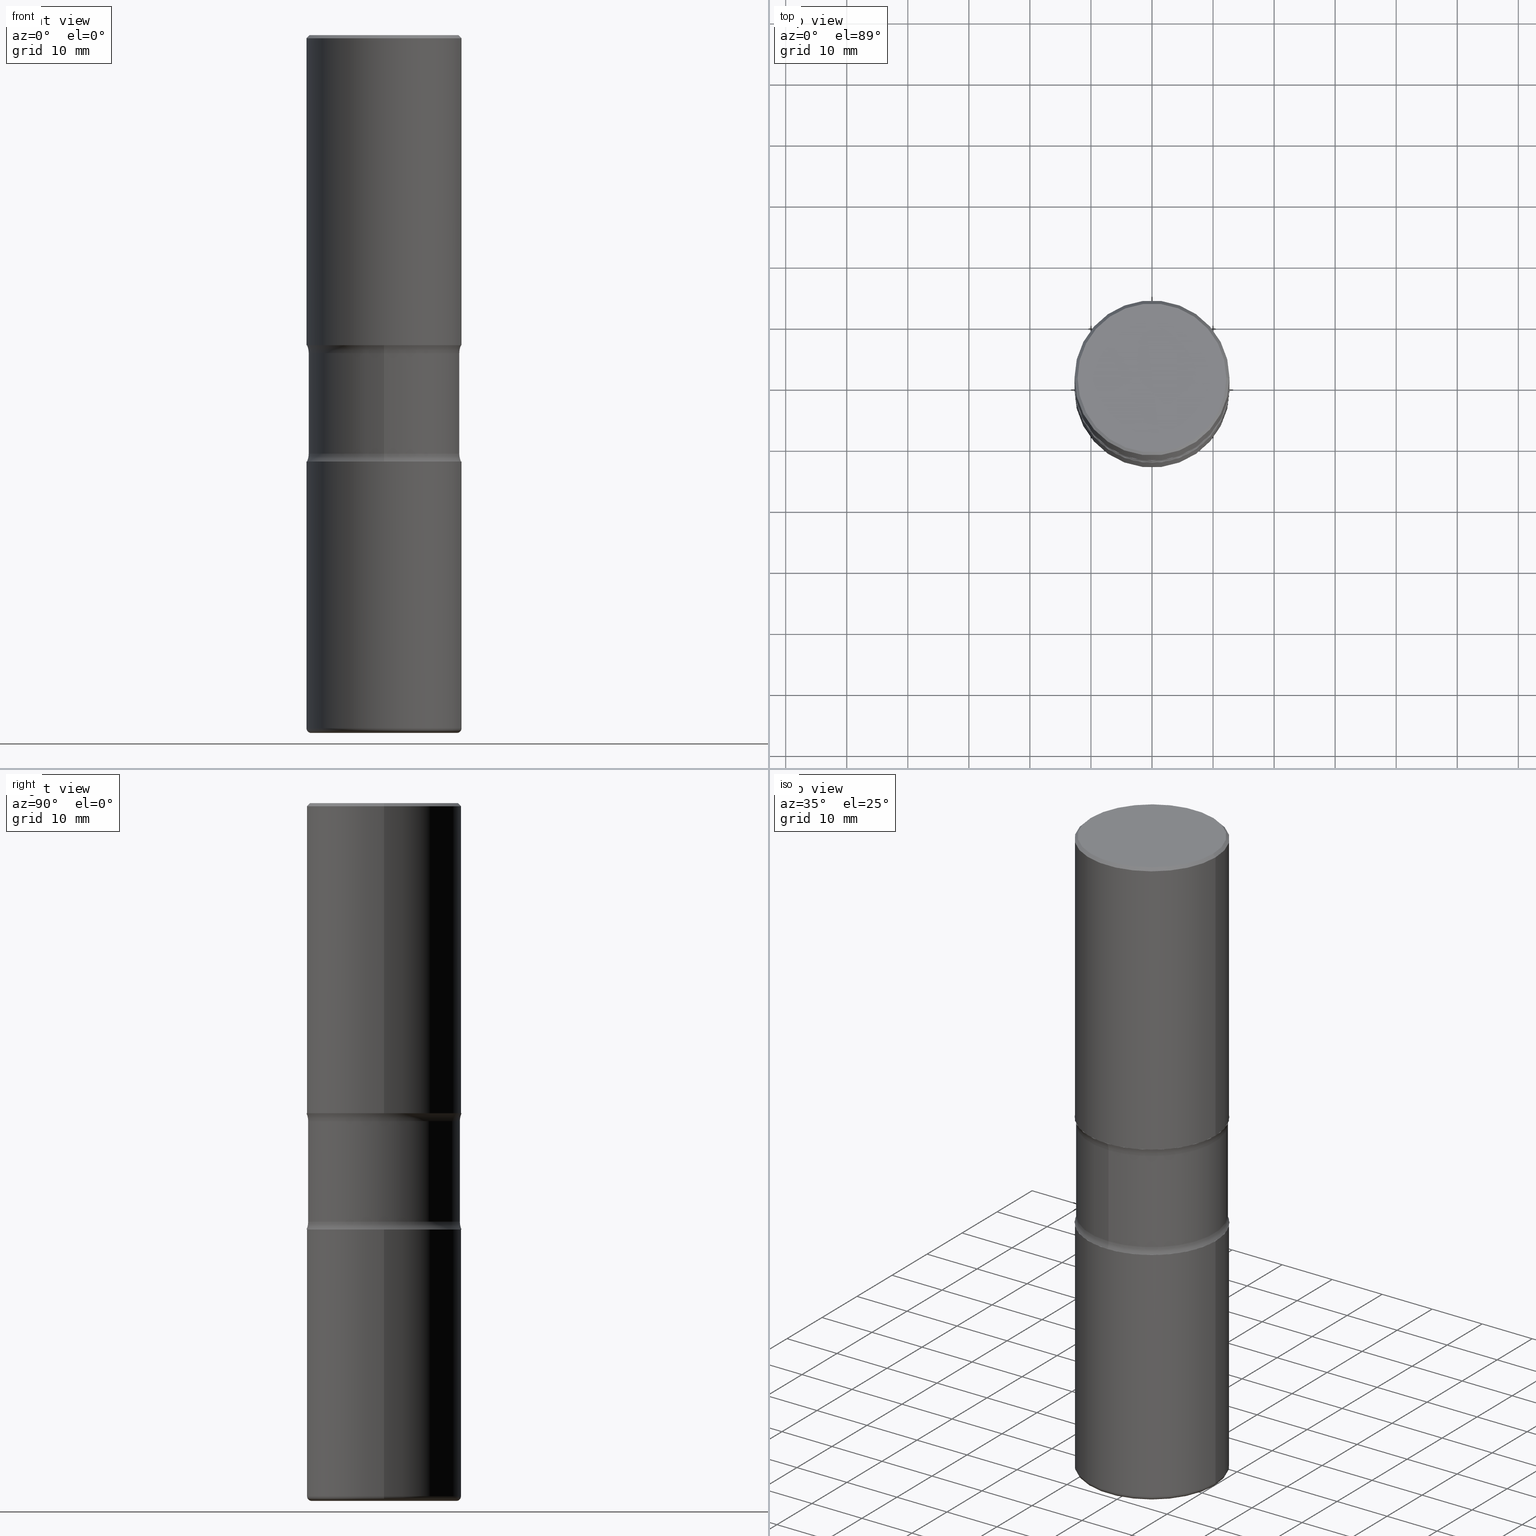
[diagram: canonical four-view strip — front | top / right | iso, engineering-drawing reading convention]
A machine part, canonical four-view strip (front | top / right | iso — engineering-drawing reading convention). The complete STEP part file that produces these views, byte-faithful:
ISO-10303-21;
HEADER;
FILE_DESCRIPTION (( 'STEP AP203' ),
    '1' );
FILE_NAME ('34008.STEP',
    '2024-03-01T22:53:43',
    ( '' ),
    ( '' ),
    'SwSTEP 2.0',
    'SolidWorks 2023',
    '' );
FILE_SCHEMA (( 'CONFIG_CONTROL_DESIGN' ));
ENDSEC;

DATA;
#1 = EDGE_LOOP ( 'NONE', ( #41, #558, #518, #480 ) ) ;
#2 = CARTESIAN_POINT ( 'NONE',  ( 1.100460962783311469E-28, -1.571166602479415690E-14, -4.500000000000000000 ) ) ;
#3 = AXIS2_PLACEMENT_3D ( 'NONE', #315, #403, #489 ) ;
#4 = CIRCLE ( 'NONE', #181, 0.1250000000000000278 ) ;
#5 = EDGE_LOOP ( 'NONE', ( #207, #117 ) ) ;
#6 = ADVANCED_FACE ( 'NONE', ( #179 ), #525, .T. ) ;
#7 = CARTESIAN_POINT ( 'NONE',  ( 1.093124556364756229E-28, -1.560692158462886353E-14, -4.470000000000000639 ) ) ;
#8 = FACE_OUTER_BOUND ( 'NONE', #5, .T. ) ;
#9 = EDGE_CURVE ( 'NONE', #259, #341, #82, .T. ) ;
#10 = CARTESIAN_POINT ( 'NONE',  ( -4.212345770631669993E-15, -0.6140000000000072067, -2.051273774973176423 ) ) ;
#11 = VERTEX_POINT ( 'NONE', #439 ) ;
#12 = CARTESIAN_POINT ( 'NONE',  ( 4.287539084099434435E-15, 0.6139999999999906644, -2.698726225026825354 ) ) ;
#13 = APPROVAL_PERSON_ORGANIZATION ( #24, #252, #162 ) ;
#14 = CARTESIAN_POINT ( 'NONE',  ( 0.5000000000000004441, -3.491481338843136511E-15, 2.438088387897969858E-29 ) ) ;
#15 = AXIS2_PLACEMENT_3D ( 'NONE', #188, #116, #76 ) ;
#16 = LOCAL_TIME ( 17, 53, 43.00000000000000000, #249 ) ;
#17 = CARTESIAN_POINT ( 'NONE',  ( 6.725039217009125641E-29, -9.601573681818653015E-15, -2.750000000000000444 ) ) ;
#18 = VERTEX_POINT ( 'NONE', #442 ) ;
#19 = DIRECTION ( 'NONE',  ( -2.445468806185136597E-29, 3.491481338843145583E-15, 1.000000000000000000 ) ) ;
#20 = DIRECTION ( 'NONE',  ( 1.000000000000000000, -6.982962677686266711E-15, 0.000000000000000000 ) ) ;
#21 = CARTESIAN_POINT ( 'NONE',  ( 1.093124556364756229E-28, -1.560692158462886353E-14, -4.470000000000000639 ) ) ;
#22 = CARTESIAN_POINT ( 'NONE',  ( 4.890937612370274875E-29, -6.982962677686292743E-15, -2.000000000000000444 ) ) ;
#23 = CIRCLE ( 'NONE', #201, 0.5000000000000002220 ) ;
#24 = PERSON_AND_ORGANIZATION ( #520, #257 ) ;
#25 = ADVANCED_FACE ( 'NONE', ( #142 ), #221, .F. ) ;
#26 = DIRECTION ( 'NONE',  ( -1.000000000000000000, 6.982962677686265922E-15, -4.876176775795935793E-29 ) ) ;
#27 = EDGE_LOOP ( 'NONE', ( #175, #478, #476, #485 ) ) ;
#28 = APPROVAL_STATUS ( 'not_yet_approved' ) ;
#29 = ADVANCED_FACE ( 'NONE', ( #8 ), #177, .F. ) ;
#30 = CARTESIAN_POINT ( 'NONE',  ( 6.725039217009125641E-29, -9.601573681818653015E-15, -2.750000000000000444 ) ) ;
#31 = PERSON_AND_ORGANIZATION ( #520, #257 ) ;
#32 = CARTESIAN_POINT ( 'NONE',  ( 0.4800000000000001488, -3.396558832296483282E-15, 1.280553747032483033E-17 ) ) ;
#33 = AXIS2_PLACEMENT_3D ( 'NONE', #321, #408, #443 ) ;
#34 = PERSON_AND_ORGANIZATION ( #520, #257 ) ;
#35 = AXIS2_PLACEMENT_3D ( 'NONE', #289, #477, #262 ) ;
#36 = CARTESIAN_POINT ( 'NONE',  ( 5.033067857215771356E-29, -7.138008856206666499E-15, -2.051273774973178643 ) ) ;
#37 = EDGE_CURVE ( 'NONE', #11, #259, #267, .T. ) ;
#38 = ORIENTED_EDGE ( 'NONE', *, *, #426, .F. ) ;
#39 = APPROVAL_DATE_TIME ( #282, #48 ) ;
#40 = MANIFOLD_SOLID_BREP ( 'Body-Move/Copy2[2]', #300 ) ;
#41 = ORIENTED_EDGE ( 'NONE', *, *, #286, .T. ) ;
#42 = ORIENTED_EDGE ( 'NONE', *, *, #426, .T. ) ;
#43 = AXIS2_PLACEMENT_3D ( 'NONE', #343, #135, #519 ) ;
#44 = AXIS2_PLACEMENT_3D ( 'NONE', #69, #269, #366 ) ;
#45 = VERTEX_POINT ( 'NONE', #482 ) ;
#46 = CYLINDRICAL_SURFACE ( 'NONE', #256, 0.4890000000000000457 ) ;
#47 = ORIENTED_EDGE ( 'NONE', *, *, #270, .F. ) ;
#48 = APPROVAL ( #122, 'UNSPECIFIED' ) ;
#49 = DIRECTION ( 'NONE',  ( -1.000000000000000000, 6.982962677686265922E-15, -4.876176775795935793E-29 ) ) ;
#50 = EDGE_CURVE ( 'NONE', #18, #84, #393, .T. ) ;
#51 = VERTEX_POINT ( 'NONE', #183 ) ;
#52 = CARTESIAN_POINT ( 'NONE',  ( -0.5000000000000003331, 3.552713678800503296E-15, -2.459467545127454572E-29 ) ) ;
#53 = LOCAL_TIME ( 17, 53, 43.00000000000000000, #324 ) ;
#54 = CIRCLE ( 'NONE', #230, 0.1249999999999999584 ) ;
#55 = VERTEX_POINT ( 'NONE', #398 ) ;
#56 = CARTESIAN_POINT ( 'NONE',  ( 3.351822085289408731E-15, 0.4800000000000001488, -1.669508273909559839E-15 ) ) ;
#57 = DIRECTION ( 'NONE',  ( 1.000000000000000000, -6.982962677686268288E-15, 0.000000000000000000 ) ) ;
#58 = LINE ( 'NONE', #402, #390 ) ;
#59 = CARTESIAN_POINT ( 'NONE',  ( 4.890937612370274875E-29, -6.982962677686292743E-15, -2.000000000000000444 ) ) ;
#60 = CYLINDRICAL_SURFACE ( 'NONE', #290, 0.4890000000000000457 ) ;
#61 = EDGE_CURVE ( 'NONE', #84, #304, #311, .T. ) ;
#62 = AXIS2_PLACEMENT_3D ( 'NONE', #445, #101, #108 ) ;
#63 = ORIENTED_EDGE ( 'NONE', *, *, #303, .T. ) ;
#64 = CLOSED_SHELL ( 'NONE', ( #362, #414, #170, #338, #6, #29 ) ) ;
#65 = VECTOR ( 'NONE', #68, 39.37007874015748143 ) ;
#66 = DIRECTION ( 'NONE',  ( 6.982962677686265133E-15, 1.000000000000000000, -3.278217592397113101E-15 ) ) ;
#67 = CARTESIAN_POINT ( 'NONE',  ( 5.016326029642537389E-29, -7.161984106177186879E-15, -2.051273774973178643 ) ) ;
#68 = DIRECTION ( 'NONE',  ( 2.421508309250029379E-29, -3.525794134201012972E-15, -1.000000000000000000 ) ) ;
#69 = CARTESIAN_POINT ( 'NONE',  ( 6.600879344864962376E-29, -9.420792906779880886E-15, -2.698726225026823133 ) ) ;
#70 = DIRECTION ( 'NONE',  ( -2.445468806185136597E-29, 3.491481338843145583E-15, 1.000000000000000000 ) ) ;
#71 = ORIENTED_EDGE ( 'NONE', *, *, #392, .T. ) ;
#72 = AXIS2_PLACEMENT_3D ( 'NONE', #106, #276, #365 ) ;
#73 = CALENDAR_DATE ( 2024, 1, 3 ) ;
#74 = DIRECTION ( 'NONE',  ( 1.000000000000000000, -6.982962677686267499E-15, 0.000000000000000000 ) ) ;
#75 = APPROVAL_STATUS ( 'not_yet_approved' ) ;
#76 = DIRECTION ( 'NONE',  ( 1.000000000000000000, -6.982962677686266711E-15, 0.000000000000000000 ) ) ;
#77 = ORIENTED_EDGE ( 'NONE', *, *, #529, .T. ) ;
#78 = PERSON_AND_ORGANIZATION ( #520, #257 ) ;
#79 = CARTESIAN_POINT ( 'NONE',  ( 1.093124556364756229E-28, -1.560692158462886353E-14, -4.470000000000000639 ) ) ;
#80 = CC_DESIGN_PERSON_AND_ORGANIZATION_ASSIGNMENT ( #202, #337, ( #344 ) ) ;
#81 = APPROVAL_ROLE ( '' ) ;
#82 = CIRCLE ( 'NONE', #449, 0.5000000000000002220 ) ;
#83 = TOROIDAL_SURFACE ( 'NONE', #467, 0.6139999999999999902, 0.1250000000000000278 ) ;
#84 = VERTEX_POINT ( 'NONE', #144 ) ;
#85 = DATE_TIME_ROLE ( 'classification_date' ) ;
#86 = EDGE_LOOP ( 'NONE', ( #470, #100, #431, #339 ) ) ;
#87 = EDGE_LOOP ( 'NONE', ( #457, #241 ) ) ;
#88 = CIRCLE ( 'NONE', #62, 0.1250000000000000278 ) ;
#89 = DIRECTION ( 'NONE',  ( -2.445468806185136877E-29, 3.491481338843145188E-15, 1.000000000000000000 ) ) ;
#90 = ADVANCED_FACE ( 'NONE', ( #537 ), #83, .F. ) ;
#91 = AXIS2_PLACEMENT_3D ( 'NONE', #376, #109, #368 ) ;
#92 = ORIENTED_EDGE ( 'NONE', *, *, #288, .F. ) ;
#93 = CARTESIAN_POINT ( 'NONE',  ( 4.890937612370274875E-29, -6.982962677686292743E-15, -2.000000000000000444 ) ) ;
#94 = EDGE_CURVE ( 'NONE', #136, #348, #54, .T. ) ;
#95 = VERTEX_POINT ( 'NONE', #32 ) ;
#96 = FACE_OUTER_BOUND ( 'NONE', #437, .T. ) ;
#97 = ORIENTED_EDGE ( 'NONE', *, *, #270, .T. ) ;
#98 = DIRECTION ( 'NONE',  ( -2.445468806185136597E-29, 3.491481338843145583E-15, 1.000000000000000000 ) ) ;
#99 = AXIS2_PLACEMENT_3D ( 'NONE', #59, #396, #225 ) ;
#100 = ORIENTED_EDGE ( 'NONE', *, *, #94, .T. ) ;
#101 = DIRECTION ( 'NONE',  ( -1.000000000000000000, 6.982962677686265922E-15, -4.883557194083112340E-29 ) ) ;
#102 = VERTEX_POINT ( 'NONE', #196 ) ;
#103 = DIRECTION ( 'NONE',  ( -6.982962677686269077E-15, -1.000000000000000000, 0.000000000000000000 ) ) ;
#104 = ORIENTED_EDGE ( 'NONE', *, *, #9, .F. ) ;
#105 = LOCAL_TIME ( 17, 53, 43.00000000000000000, #552 ) ;
#106 = CARTESIAN_POINT ( 'NONE',  ( 4.890937612370298557E-31, -6.982962677686327354E-17, -0.02000000000000010103 ) ) ;
#107 = AXIS2_PLACEMENT_3D ( 'NONE', #350, #527, #361 ) ;
#108 = DIRECTION ( 'NONE',  ( -6.982962677686265133E-15, -1.000000000000000000, 0.000000000000000000 ) ) ;
#109 = DIRECTION ( 'NONE',  ( 2.421508309250029379E-29, -3.525794134201012578E-15, -1.000000000000000000 ) ) ;
#110 = DIRECTION ( 'NONE',  ( -2.445468806185136597E-29, 3.491481338843145583E-15, 1.000000000000000000 ) ) ;
#111 = PLANE ( 'NONE',  #329 ) ;
#112 = PERSON_AND_ORGANIZATION_ROLE ( 'creator' ) ;
#113 = ADVANCED_FACE ( 'NONE', ( #495 ), #421, .F. ) ;
#114 = DIRECTION ( 'NONE',  ( 6.982962677686265922E-15, 1.000000000000000000, -3.525794134201012578E-15 ) ) ;
#115 = AXIS2_PLACEMENT_3D ( 'NONE', #186, #535, #57 ) ;
#116 = DIRECTION ( 'NONE',  ( -2.445468806185136597E-29, 3.491481338843145583E-15, 1.000000000000000000 ) ) ;
#117 = ORIENTED_EDGE ( 'NONE', *, *, #515, .T. ) ;
#118 = CYLINDRICAL_SURFACE ( 'NONE', #43, 0.5000000000000004441 ) ;
#119 = PERSON_AND_ORGANIZATION_ROLE ( 'design_owner' ) ;
#120 = ADVANCED_FACE ( 'NONE', ( #155 ), #411, .T. ) ;
#121 = ORIENTED_EDGE ( 'NONE', *, *, #50, .F. ) ;
#122 = APPROVAL_STATUS ( 'not_yet_approved' ) ;
#123 = AXIS2_PLACEMENT_3D ( 'NONE', #79, #347, #524 ) ;
#124 = ORIENTED_EDGE ( 'NONE', *, *, #184, .T. ) ;
#125 = ORIENTED_EDGE ( 'NONE', *, *, #469, .T. ) ;
#126 = EDGE_CURVE ( 'NONE', #341, #259, #23, .T. ) ;
#127 = FACE_OUTER_BOUND ( 'NONE', #255, .T. ) ;
#128 = ORIENTED_EDGE ( 'NONE', *, *, #322, .F. ) ;
#129 = AXIS2_PLACEMENT_3D ( 'NONE', #369, #242, #379 ) ;
#130 = CARTESIAN_POINT ( 'NONE',  ( 6.725039217009125641E-29, -9.601573681818653015E-15, -2.750000000000000444 ) ) ;
#131 = CIRCLE ( 'NONE', #522, 0.4800000000000001488 ) ;
#132 = ORIENTED_EDGE ( 'NONE', *, *, #512, .T. ) ;
#133 = EDGE_CURVE ( 'NONE', #146, #434, #549, .T. ) ;
#134 = APPLICATION_CONTEXT ( 'configuration controlled 3d designs of mechanical parts and assemblies' ) ;
#135 = DIRECTION ( 'NONE',  ( -2.445468806185136597E-29, 3.491481338843145583E-15, 1.000000000000000000 ) ) ;
#136 = VERTEX_POINT ( 'NONE', #190 ) ;
#137 = FACE_OUTER_BOUND ( 'NONE', #342, .T. ) ;
#138 = ORIENTED_EDGE ( 'NONE', *, *, #557, .T. ) ;
#139 = CARTESIAN_POINT ( 'NONE',  ( -3.131554243005659264E-46, 4.471029511141341874E-32, 1.280553747030123384E-17 ) ) ;
#140 =( GEOMETRIC_REPRESENTATION_CONTEXT ( 3 ) GLOBAL_UNCERTAINTY_ASSIGNED_CONTEXT ( ( #511 ) ) GLOBAL_UNIT_ASSIGNED_CONTEXT ( ( #462, #542, #500 ) ) REPRESENTATION_CONTEXT ( 'NONE', 'WORKASPACE' ) );
#141 = AXIS2_PLACEMENT_3D ( 'NONE', #454, #193, #501 ) ;
#142 = FACE_OUTER_BOUND ( 'NONE', #87, .T. ) ;
#143 = CARTESIAN_POINT ( 'NONE',  ( 4.908907985071605288E-29, -6.957228081167892792E-15, -2.000000000000000444 ) ) ;
#144 = CARTESIAN_POINT ( 'NONE',  ( 0.5000000000000002220, -1.909840292347200004E-14, -4.470000000000000639 ) ) ;
#145 = ADVANCED_FACE ( 'NONE', ( #239 ), #173, .T. ) ;
#146 = VERTEX_POINT ( 'NONE', #234 ) ;
#147 = CARTESIAN_POINT ( 'NONE',  ( 6.725039217009125641E-29, -9.601573681818653015E-15, -2.750000000000000444 ) ) ;
#148 = DIRECTION ( 'NONE',  ( 6.860497997771532351E-15, 1.000000000000000000, 0.000000000000000000 ) ) ;
#149 = AXIS2_PLACEMENT_3D ( 'NONE', #416, #278, #26 ) ;
#150 = DIRECTION ( 'NONE',  ( 2.421508309250029379E-29, -3.525794134201012578E-15, -1.000000000000000000 ) ) ;
#151 = FACE_OUTER_BOUND ( 'NONE', #345, .T. ) ;
#152 = DATE_AND_TIME ( #197, #209 ) ;
#153 = CARTESIAN_POINT ( 'NONE',  ( 6.599650799736865930E-29, -9.422552253327759667E-15, -2.698726225026823133 ) ) ;
#154 = DATE_AND_TIME ( #374, #163 ) ;
#155 = FACE_OUTER_BOUND ( 'NONE', #516, .T. ) ;
#156 = CIRCLE ( 'NONE', #285, 0.4800000000000001488 ) ;
#157 = AXIS2_PLACEMENT_3D ( 'NONE', #331, #98, #176 ) ;
#158 = DIRECTION ( 'NONE',  ( 1.000000000000000000, -6.860497997771530774E-15, 4.840378669074095129E-29 ) ) ;
#159 = PERSON_AND_ORGANIZATION_ROLE ( 'design_supplier' ) ;
#160 = DIRECTION ( 'NONE',  ( 1.000000000000000000, -6.982962677686268288E-15, 0.000000000000000000 ) ) ;
#161 = EDGE_LOOP ( 'NONE', ( #427, #253, #213, #464 ) ) ;
#162 = APPROVAL_ROLE ( '' ) ;
#163 = LOCAL_TIME ( 17, 53, 43.00000000000000000, #466 ) ;
#164 = ORIENTED_EDGE ( 'NONE', *, *, #551, .F. ) ;
#165 = CIRCLE ( 'NONE', #240, 0.4700000000000004730 ) ;
#166 = VERTEX_POINT ( 'NONE', #409 ) ;
#167 = ORIENTED_EDGE ( 'NONE', *, *, #551, .T. ) ;
#168 = FACE_OUTER_BOUND ( 'NONE', #161, .T. ) ;
#169 = ORIENTED_EDGE ( 'NONE', *, *, #446, .F. ) ;
#170 = ADVANCED_FACE ( 'NONE', ( #451 ), #415, .T. ) ;
#171 = CC_DESIGN_APPROVAL ( #496, ( #344 ) ) ;
#172 = DIRECTION ( 'NONE',  ( 1.000000000000000000, -6.982962677686268288E-15, 0.000000000000000000 ) ) ;
#173 = CONICAL_SURFACE ( 'NONE', #72, 0.5000000000000002220, 0.7853981633974485010 ) ;
#174 = CC_DESIGN_PERSON_AND_ORGANIZATION_ASSIGNMENT ( #34, #159, ( #521 ) ) ;
#175 = ORIENTED_EDGE ( 'NONE', *, *, #557, .F. ) ;
#176 = DIRECTION ( 'NONE',  ( 1.000000000000000000, -6.982962677686266711E-15, 4.876176775795935793E-29 ) ) ;
#177 = PLANE ( 'NONE',  #107 ) ;
#178 = DIRECTION ( 'NONE',  ( 2.421508309250029379E-29, -3.525794134201012972E-15, -1.000000000000000000 ) ) ;
#179 = FACE_OUTER_BOUND ( 'NONE', #472, .T. ) ;
#180 = CARTESIAN_POINT ( 'NONE',  ( -3.354783520910168989E-15, -0.4890000000000158109, -4.499999999999999112 ) ) ;
#181 = AXIS2_PLACEMENT_3D ( 'NONE', #10, #297, #435 ) ;
#182 = AXIS2_PLACEMENT_3D ( 'NONE', #21, #189, #279 ) ;
#183 = CARTESIAN_POINT ( 'NONE',  ( -0.5000000000000004441, -9.051533954423253397E-15, -2.750000000000000444 ) ) ;
#184 = EDGE_CURVE ( 'NONE', #55, #166, #531, .T. ) ;
#185 = DIRECTION ( 'NONE',  ( -6.982962677686266711E-15, -1.000000000000000000, 3.491481338843145583E-15 ) ) ;
#186 = CARTESIAN_POINT ( 'NONE',  ( 1.093124556364756229E-28, -1.560692158462886353E-14, -4.470000000000000639 ) ) ;
#187 = DIRECTION ( 'NONE',  ( -1.000000000000000000, 6.982962677686265922E-15, -4.883557194083112340E-29 ) ) ;
#188 = CARTESIAN_POINT ( 'NONE',  ( 4.890937612370274875E-29, -6.982962677686292743E-15, -2.000000000000000444 ) ) ;
#189 = DIRECTION ( 'NONE',  ( -2.445468806185136597E-29, 3.491481338843145583E-15, 1.000000000000000000 ) ) ;
#190 = CARTESIAN_POINT ( 'NONE',  ( -3.430248998885699911E-15, -0.5000000000000099920, -2.749999999999998668 ) ) ;
#191 = AXIS2_PLACEMENT_3D ( 'NONE', #7, #110, #399 ) ;
#192 = EDGE_CURVE ( 'NONE', #434, #146, #460, .T. ) ;
#193 = DIRECTION ( 'NONE',  ( 2.421508309250029379E-29, -3.525794134201012578E-15, -1.000000000000000000 ) ) ;
#194 = EDGE_LOOP ( 'NONE', ( #388, #63, #386, #514 ) ) ;
#195 = SHAPE_DEFINITION_REPRESENTATION ( #232, #336 ) ;
#196 = CARTESIAN_POINT ( 'NONE',  ( 3.414668749388650307E-15, 0.4889999999999906088, -2.698726225026824466 ) ) ;
#197 = CALENDAR_DATE ( 2024, 1, 3 ) ;
#198 = LINE ( 'NONE', #371, #65 ) ;
#199 = CC_DESIGN_APPROVAL ( #252, ( #488 ) ) ;
#200 = EDGE_CURVE ( 'NONE', #55, #102, #198, .T. ) ;
#201 = AXIS2_PLACEMENT_3D ( 'NONE', #491, #70, #74 ) ;
#202 = PERSON_AND_ORGANIZATION ( #520, #257 ) ;
#203 = CC_DESIGN_DATE_AND_TIME_ASSIGNMENT ( #154, #244, ( #488 ) ) ;
#204 = CYLINDRICAL_SURFACE ( 'NONE', #157, 0.5000000000000003331 ) ;
#205 = ORIENTED_EDGE ( 'NONE', *, *, #446, .T. ) ;
#206 = DATE_AND_TIME ( #251, #16 ) ;
#207 = ORIENTED_EDGE ( 'NONE', *, *, #268, .T. ) ;
#208 = EDGE_CURVE ( 'NONE', #18, #51, #463, .T. ) ;
#209 = LOCAL_TIME ( 17, 53, 43.00000000000000000, #465 ) ;
#210 = ORIENTED_EDGE ( 'NONE', *, *, #471, .F. ) ;
#211 = AXIS2_PLACEMENT_3D ( 'NONE', #93, #433, #333 ) ;
#212 = AXIS2_PLACEMENT_3D ( 'NONE', #36, #479, #473 ) ;
#213 = ORIENTED_EDGE ( 'NONE', *, *, #268, .F. ) ;
#214 = CARTESIAN_POINT ( 'NONE',  ( 0.5000000000000004441, -1.309305502066178953E-14, -2.750000000000000444 ) ) ;
#215 = VERTEX_POINT ( 'NONE', #236 ) ;
#216 = CC_DESIGN_PERSON_AND_ORGANIZATION_ASSIGNMENT ( #31, #119, ( #364 ) ) ;
#217 = CARTESIAN_POINT ( 'NONE',  ( 3.491481338843202381E-15, 0.4999999999999907296, -2.750000000000002220 ) ) ;
#218 = ORIENTED_EDGE ( 'NONE', *, *, #471, .T. ) ;
#219 = PLANE ( 'NONE',  #440 ) ;
#220 = CIRCLE ( 'NONE', #212, 0.4889999999999999347 ) ;
#221 = PLANE ( 'NONE',  #99 ) ;
#222 = MANIFOLD_SOLID_BREP ( 'Body-Move/Copy2[4]', #264 ) ;
#223 = ADVANCED_FACE ( 'NONE', ( #541 ), #493, .F. ) ;
#224 = DIRECTION ( 'NONE',  ( 6.982962677686265133E-15, 1.000000000000000000, -3.278217592397113101E-15 ) ) ;
#225 = DIRECTION ( 'NONE',  ( 1.000000000000000000, -6.982962677686265922E-15, 4.876176775795935793E-29 ) ) ;
#226 = DIRECTION ( 'NONE',  ( 1.000000000000000000, -6.982962677686213068E-15, 0.000000000000000000 ) ) ;
#227 = ADVANCED_FACE ( 'NONE', ( #151 ), #111, .F. ) ;
#228 = ORIENTED_EDGE ( 'NONE', *, *, #486, .T. ) ;
#229 = DIRECTION ( 'NONE',  ( 6.982962677686265133E-15, 1.000000000000000000, -3.351960728422408359E-15 ) ) ;
#230 = AXIS2_PLACEMENT_3D ( 'NONE', #320, #158, #148 ) ;
#231 = CARTESIAN_POINT ( 'NONE',  ( -0.5000000000000002220, 3.421651712066272029E-15, -0.02000000000000010103 ) ) ;
#232 = PRODUCT_DEFINITION_SHAPE ( 'NONE', 'NONE',  #488 ) ;
#233 = FACE_OUTER_BOUND ( 'NONE', #86, .T. ) ;
#234 = CARTESIAN_POINT ( 'NONE',  ( 0.5000000000000004441, -1.047444401652943004E-14, -2.000000000000000444 ) ) ;
#235 = DIRECTION ( 'NONE',  ( -2.445468806185136597E-29, 3.491481338843145583E-15, 1.000000000000000000 ) ) ;
#236 = CARTESIAN_POINT ( 'NONE',  ( 3.491481338843185026E-15, 0.4999999999999934497, -2.000000000000002220 ) ) ;
#237 = DIRECTION ( 'NONE',  ( 6.982962677686265133E-15, 1.000000000000000000, -3.278217592397113101E-15 ) ) ;
#238 = TOROIDAL_SURFACE ( 'NONE', #33, 0.6140000000000001013, 0.1250000000000000000 ) ;
#239 = FACE_OUTER_BOUND ( 'NONE', #27, .T. ) ;
#240 = AXIS2_PLACEMENT_3D ( 'NONE', #2, #307, #160 ) ;
#241 = ORIENTED_EDGE ( 'NONE', *, *, #192, .F. ) ;
#242 = DIRECTION ( 'NONE',  ( 0.000000000000000000, 0.000000000000000000, 1.000000000000000000 ) ) ;
#243 = VERTEX_POINT ( 'NONE', #461 ) ;
#244 = DATE_TIME_ROLE ( 'creation_date' ) ;
#245 = LINE ( 'NONE', #52, #292 ) ;
#246 = CC_DESIGN_APPROVAL ( #48, ( #521 ) ) ;
#247 = ORIENTED_EDGE ( 'NONE', *, *, #429, .F. ) ;
#248 = AXIS2_PLACEMENT_3D ( 'NONE', #153, #280, #498 ) ;
#249 = COORDINATED_UNIVERSAL_TIME_OFFSET ( 5, 0, .BEHIND. ) ;
#250 = ORIENTED_EDGE ( 'NONE', *, *, #126, .T. ) ;
#251 = CALENDAR_DATE ( 2024, 1, 3 ) ;
#252 = APPROVAL ( #75, 'UNSPECIFIED' ) ;
#253 = ORIENTED_EDGE ( 'NONE', *, *, #208, .T. ) ;
#254 = AXIS2_PLACEMENT_3D ( 'NONE', #312, #150, #66 ) ;
#255 = EDGE_LOOP ( 'NONE', ( #38, #425 ) ) ;
#256 = AXIS2_PLACEMENT_3D ( 'NONE', #387, #397, #420 ) ;
#257 = ORGANIZATION ( 'UNSPECIFIED', 'UNSPECIFIED', '' ) ;
#258 = CARTESIAN_POINT ( 'NONE',  ( -0.4700000000000004730, -1.221316153627502204E-14, -4.500000000000000000 ) ) ;
#259 = VERTEX_POINT ( 'NONE', #545 ) ;
#260 = DIRECTION ( 'NONE',  ( 2.438088387897960049E-29, -3.491481338843145188E-15, -1.000000000000000000 ) ) ;
#261 = EDGE_LOOP ( 'NONE', ( #92, #97, #77, #391 ) ) ;
#262 = DIRECTION ( 'NONE',  ( 6.982962677686265133E-15, 1.000000000000000000, -3.351960728422408359E-15 ) ) ;
#263 = ORIENTED_EDGE ( 'NONE', *, *, #37, .F. ) ;
#264 = CLOSED_SHELL ( 'NONE', ( #555, #532, #90, #113, #305, #227, #223, #318 ) ) ;
#265 = DIRECTION ( 'NONE',  ( -2.445468806185136877E-29, 3.491481338843145188E-15, 1.000000000000000000 ) ) ;
#266 = AXIS2_PLACEMENT_3D ( 'NONE', #143, #272, #237 ) ;
#267 = LINE ( 'NONE', #231, #319 ) ;
#268 = EDGE_CURVE ( 'NONE', #304, #51, #483, .T. ) ;
#269 = DIRECTION ( 'NONE',  ( 2.421508309250029379E-29, -3.525794134201012578E-15, -1.000000000000000000 ) ) ;
#270 = EDGE_CURVE ( 'NONE', #166, #45, #4, .T. ) ;
#271 = ORIENTED_EDGE ( 'NONE', *, *, #436, .T. ) ;
#272 = DIRECTION ( 'NONE',  ( 2.421508309250029379E-29, -3.525794134201012578E-15, -1.000000000000000000 ) ) ;
#273 = EDGE_LOOP ( 'NONE', ( #295, #523 ) ) ;
#274 = CIRCLE ( 'NONE', #357, 0.1249999999999999584 ) ;
#275 = VECTOR ( 'NONE', #534, 39.37007874015748143 ) ;
#276 = DIRECTION ( 'NONE',  ( 2.445468806185136597E-29, -3.491481338843145583E-15, -1.000000000000000000 ) ) ;
#277 = DIRECTION ( 'NONE',  ( 1.000000000000000000, -6.982962677686268288E-15, 0.000000000000000000 ) ) ;
#278 = DIRECTION ( 'NONE',  ( 2.438088387897960049E-29, -3.491481338843145188E-15, -1.000000000000000000 ) ) ;
#279 = DIRECTION ( 'NONE',  ( 1.000000000000000000, -6.982962677686268288E-15, 0.000000000000000000 ) ) ;
#280 = DIRECTION ( 'NONE',  ( 2.421508309250029379E-29, -3.525794134201012578E-15, -1.000000000000000000 ) ) ;
#281 = EDGE_LOOP ( 'NONE', ( #378, #381, #417, #104 ) ) ;
#282 = DATE_AND_TIME ( #73, #53 ) ;
#283 = DIRECTION ( 'NONE',  ( -6.982962677686265922E-15, -1.000000000000000000, 3.525794134201012972E-15 ) ) ;
#284 = CIRCLE ( 'NONE', #355, 0.02999999999999967970 ) ;
#285 = AXIS2_PLACEMENT_3D ( 'NONE', #139, #494, #405 ) ;
#286 = EDGE_CURVE ( 'NONE', #243, #299, #165, .T. ) ;
#287 = CARTESIAN_POINT ( 'NONE',  ( -0.5000000000000004441, 3.552713678800504085E-15, -2.459467545127455133E-29 ) ) ;
#288 = EDGE_CURVE ( 'NONE', #166, #55, #220, .T. ) ;
#289 = CARTESIAN_POINT ( 'NONE',  ( 6.600879344864962376E-29, -9.420792906779880886E-15, -2.698726225026823133 ) ) ;
#290 = AXIS2_PLACEMENT_3D ( 'NONE', #351, #490, #229 ) ;
#291 = EDGE_LOOP ( 'NONE', ( #468, #228, #125, #121 ) ) ;
#292 = VECTOR ( 'NONE', #89, 39.37007874015748143 ) ;
#293 = APPLICATION_PROTOCOL_DEFINITION ( 'international standard', 'config_control_design', 1994, #134 ) ;
#294 = DESIGN_CONTEXT ( 'detailed design', #358, 'design' ) ;
#295 = ORIENTED_EDGE ( 'NONE', *, *, #286, .F. ) ;
#296 = ORIENTED_EDGE ( 'NONE', *, *, #61, .T. ) ;
#297 = DIRECTION ( 'NONE',  ( 1.000000000000000000, -6.860497997771530774E-15, 4.840378669074095129E-29 ) ) ;
#298 = CIRCLE ( 'NONE', #432, 0.4700000000000004730 ) ;
#299 = VERTEX_POINT ( 'NONE', #258 ) ;
#300 = CLOSED_SHELL ( 'NONE', ( #326, #120, #145, #404, #25, #453 ) ) ;
#301 = AXIS2_PLACEMENT_3D ( 'NONE', #130, #302, #224 ) ;
#302 = DIRECTION ( 'NONE',  ( 2.421508309250029379E-29, -3.525794134201012578E-15, -1.000000000000000000 ) ) ;
#303 = EDGE_CURVE ( 'NONE', #434, #259, #245, .T. ) ;
#304 = VERTEX_POINT ( 'NONE', #214 ) ;
#305 = ADVANCED_FACE ( 'NONE', ( #127 ), #349, .F. ) ;
#306 = DIRECTION ( 'NONE',  ( -2.445468806185136597E-29, 3.491481338843145583E-15, 1.000000000000000000 ) ) ;
#307 = DIRECTION ( 'NONE',  ( -2.445468806185136597E-29, 3.491481338843145583E-15, 1.000000000000000000 ) ) ;
#308 = DIRECTION ( 'NONE',  ( -0.7071067811865476838, 2.468850131082258638E-15, -0.7071067811865473507 ) ) ;
#309 = CIRCLE ( 'NONE', #254, 0.5000000000000004441 ) ;
#310 = CARTESIAN_POINT ( 'NONE',  ( 0.000000000000000000, 0.000000000000000000, 0.000000000000000000 ) ) ;
#311 = LINE ( 'NONE', #14, #275 ) ;
#312 = CARTESIAN_POINT ( 'NONE',  ( 4.908907985071605288E-29, -6.957228081167892792E-15, -2.000000000000000444 ) ) ;
#313 = DIRECTION ( 'NONE',  ( 1.000000000000000000, -6.982962677686267499E-15, 0.000000000000000000 ) ) ;
#314 =( LENGTH_UNIT ( ) NAMED_UNIT ( * ) SI_UNIT ( $, .METRE. ) );
#315 = CARTESIAN_POINT ( 'NONE',  ( 0.000000000000000000, 0.000000000000000000, 0.000000000000000000 ) ) ;
#316 = FACE_OUTER_BOUND ( 'NONE', #281, .T. ) ;
#317 = AXIS2_PLACEMENT_3D ( 'NONE', #455, #185, #226 ) ;
#318 = ADVANCED_FACE ( 'NONE', ( #137 ), #46, .T. ) ;
#319 = VECTOR ( 'NONE', #308, 39.37007874015748143 ) ;
#320 = CARTESIAN_POINT ( 'NONE',  ( -4.212345770631654216E-15, -0.6140000000000095381, -2.698726225026820913 ) ) ;
#321 = CARTESIAN_POINT ( 'NONE',  ( 6.599650799736865930E-29, -9.422552253327759667E-15, -2.698726225026823133 ) ) ;
#322 = EDGE_CURVE ( 'NONE', #348, #102, #367, .T. ) ;
#323 = CARTESIAN_POINT ( 'NONE',  ( 4.890937612370298557E-31, -6.982962677686327354E-17, -0.02000000000000010103 ) ) ;
#324 = COORDINATED_UNIVERSAL_TIME_OFFSET ( 5, 0, .BEHIND. ) ;
#325 = DIRECTION ( 'NONE',  ( 2.421508309250029379E-29, -3.525794134201012578E-15, -1.000000000000000000 ) ) ;
#326 = ADVANCED_FACE ( 'NONE', ( #481 ), #204, .T. ) ;
#327 = APPROVAL_DATE_TIME ( #206, #496 ) ;
#328 = CARTESIAN_POINT ( 'NONE',  ( 6.725039217009125641E-29, -9.601573681818653015E-15, -2.750000000000000444 ) ) ;
#329 = AXIS2_PLACEMENT_3D ( 'NONE', #30, #456, #283 ) ;
#330 = APPLICATION_PROTOCOL_DEFINITION ( 'international standard', 'config_control_design', 1994, #358 ) ;
#331 = CARTESIAN_POINT ( 'NONE',  ( 0.000000000000000000, 0.000000000000000000, 0.000000000000000000 ) ) ;
#332 = CALENDAR_DATE ( 2024, 1, 3 ) ;
#333 = DIRECTION ( 'NONE',  ( 6.982962677686265922E-15, 1.000000000000000000, -3.525794134201012972E-15 ) ) ;
#334 = CC_DESIGN_DATE_AND_TIME_ASSIGNMENT ( #509, #85, ( #344 ) ) ;
#335 = VERTEX_POINT ( 'NONE', #217 ) ;
#336 = ADVANCED_BREP_SHAPE_REPRESENTATION ( '34008', ( #407, #40, #222, #129 ), #140 ) ;
#337 = PERSON_AND_ORGANIZATION_ROLE ( 'classification_officer' ) ;
#338 = ADVANCED_FACE ( 'NONE', ( #438 ), #475, .T. ) ;
#339 = ORIENTED_EDGE ( 'NONE', *, *, #436, .F. ) ;
#340 = VECTOR ( 'NONE', #265, 39.37007874015748143 ) ;
#341 = VERTEX_POINT ( 'NONE', #553 ) ;
#342 = EDGE_LOOP ( 'NONE', ( #169, #384, #353, #128 ) ) ;
#343 = CARTESIAN_POINT ( 'NONE',  ( 0.000000000000000000, 0.000000000000000000, 0.000000000000000000 ) ) ;
#344 = SECURITY_CLASSIFICATION ( '', '', #372 ) ;
#345 = EDGE_LOOP ( 'NONE', ( #167, #71 ) ) ;
#346 = CIRCLE ( 'NONE', #266, 0.5000000000000004441 ) ;
#347 = DIRECTION ( 'NONE',  ( -2.445468806185136597E-29, 3.491481338843145583E-15, 1.000000000000000000 ) ) ;
#348 = VERTEX_POINT ( 'NONE', #517 ) ;
#349 = PLANE ( 'NONE',  #211 ) ;
#350 = CARTESIAN_POINT ( 'NONE',  ( 6.725039217009125641E-29, -9.601573681818653015E-15, -2.750000000000000444 ) ) ;
#351 = CARTESIAN_POINT ( 'NONE',  ( 1.096267875819667930E-28, -1.577171341667042581E-14, -4.500000000000000888 ) ) ;
#352 = EDGE_CURVE ( 'NONE', #146, #341, #508, .T. ) ;
#353 = ORIENTED_EDGE ( 'NONE', *, *, #200, .T. ) ;
#354 = CIRCLE ( 'NONE', #44, 0.4890000000000000457 ) ;
#355 = AXIS2_PLACEMENT_3D ( 'NONE', #441, #526, #380 ) ;
#356 = CARTESIAN_POINT ( 'NONE',  ( 1.100460962783311469E-28, -1.571166602479415690E-14, -4.500000000000000000 ) ) ;
#357 = AXIS2_PLACEMENT_3D ( 'NONE', #12, #187, #103 ) ;
#358 = APPLICATION_CONTEXT ( 'configuration controlled 3d designs of mechanical parts and assemblies' ) ;
#359 = ORIENTED_EDGE ( 'NONE', *, *, #422, .T. ) ;
#360 = DIRECTION ( 'NONE',  ( 6.982962677686265133E-15, 1.000000000000000000, -3.278217592397113101E-15 ) ) ;
#361 = DIRECTION ( 'NONE',  ( -1.000000000000000000, 6.982962677686265922E-15, -4.876176775795935793E-29 ) ) ;
#362 = ADVANCED_FACE ( 'NONE', ( #168 ), #118, .T. ) ;
#363 = DIRECTION ( 'NONE',  ( 1.000000000000000000, -6.982962677686266711E-15, 4.876176775795935793E-29 ) ) ;
#364 = PRODUCT ( '34008', '34008', '', ( #544 ) ) ;
#365 = DIRECTION ( 'NONE',  ( -1.000000000000000000, 6.982962677686267499E-15, 0.000000000000000000 ) ) ;
#366 = DIRECTION ( 'NONE',  ( 6.982962677686265133E-15, 1.000000000000000000, -3.351960728422408359E-15 ) ) ;
#367 = CIRCLE ( 'NONE', #35, 0.4890000000000000457 ) ;
#368 = DIRECTION ( 'NONE',  ( 6.982962677686265922E-15, 1.000000000000000000, -3.525794134201012578E-15 ) ) ;
#369 = CARTESIAN_POINT ( 'NONE',  ( 0.000000000000000000, 0.000000000000000000, 0.000000000000000000 ) ) ;
#370 = EDGE_CURVE ( 'NONE', #299, #18, #284, .T. ) ;
#371 = CARTESIAN_POINT ( 'NONE',  ( 3.414668749388694089E-15, 0.4889999999999842806, -4.500000000000002665 ) ) ;
#372 = SECURITY_CLASSIFICATION_LEVEL ( 'unclassified' ) ;
#373 = DIRECTION ( 'NONE',  ( 2.445468806185136597E-29, -3.491481338843145583E-15, -1.000000000000000000 ) ) ;
#374 = CALENDAR_DATE ( 2024, 1, 3 ) ;
#375 = AXIS2_PLACEMENT_3D ( 'NONE', #147, #452, #277 ) ;
#376 = CARTESIAN_POINT ( 'NONE',  ( 5.016326029642537389E-29, -7.161984106177186879E-15, -2.051273774973178643 ) ) ;
#377 = TOROIDAL_SURFACE ( 'NONE', #191, 0.4700000000000004730, 0.02999999999999971440 ) ;
#378 = ORIENTED_EDGE ( 'NONE', *, *, #303, .F. ) ;
#379 = DIRECTION ( 'NONE',  ( 1.000000000000000000, 0.000000000000000000, 0.000000000000000000 ) ) ;
#380 = DIRECTION ( 'NONE',  ( -1.000000000000000000, 7.105427357601001859E-15, 0.000000000000000000 ) ) ;
#381 = ORIENTED_EDGE ( 'NONE', *, *, #192, .T. ) ;
#382 = PERSON_AND_ORGANIZATION ( #520, #257 ) ;
#383 = ORIENTED_EDGE ( 'NONE', *, *, #515, .F. ) ;
#384 = ORIENTED_EDGE ( 'NONE', *, *, #288, .T. ) ;
#385 = AXIS2_PLACEMENT_3D ( 'NONE', #328, #505, #172 ) ;
#386 = ORIENTED_EDGE ( 'NONE', *, *, #126, .F. ) ;
#387 = CARTESIAN_POINT ( 'NONE',  ( 1.096267875819667930E-28, -1.577171341667042581E-14, -4.500000000000000888 ) ) ;
#388 = ORIENTED_EDGE ( 'NONE', *, *, #133, .T. ) ;
#389 = FACE_OUTER_BOUND ( 'NONE', #1, .T. ) ;
#390 = VECTOR ( 'NONE', #528, 39.37007874015748143 ) ;
#391 = ORIENTED_EDGE ( 'NONE', *, *, #512, .F. ) ;
#392 = EDGE_CURVE ( 'NONE', #136, #335, #504, .T. ) ;
#393 = CIRCLE ( 'NONE', #115, 0.5000000000000004441 ) ;
#394 = CARTESIAN_POINT ( 'NONE',  ( -3.131554243005659264E-46, 4.471029511141341874E-32, 1.280553747030123384E-17 ) ) ;
#395 = PRODUCT_RELATED_PRODUCT_CATEGORY ( 'detail', '', ( #364 ) ) ;
#396 = DIRECTION ( 'NONE',  ( -2.438088387897960049E-29, 3.491481338843145188E-15, 1.000000000000000000 ) ) ;
#397 = DIRECTION ( 'NONE',  ( 2.421508309250029379E-29, -3.525794134201012578E-15, -1.000000000000000000 ) ) ;
#398 = CARTESIAN_POINT ( 'NONE',  ( 3.414668749388634135E-15, 0.4889999999999927738, -2.051273774973179975 ) ) ;
#399 = DIRECTION ( 'NONE',  ( 1.000000000000000000, -6.982962677686265133E-15, 4.883557194083112340E-29 ) ) ;
#400 = ORIENTED_EDGE ( 'NONE', *, *, #208, .F. ) ;
#401 = VECTOR ( 'NONE', #178, 39.37007874015748143 ) ;
#402 = CARTESIAN_POINT ( 'NONE',  ( 0.5000000000000002220, -3.500078625662630657E-15, -0.02000000000000010103 ) ) ;
#403 = DIRECTION ( 'NONE',  ( -2.445468806185136597E-29, 3.491481338843145583E-15, 1.000000000000000000 ) ) ;
#404 = ADVANCED_FACE ( 'NONE', ( #96 ), #219, .F. ) ;
#405 = DIRECTION ( 'NONE',  ( 1.000000000000000000, -6.982962677686266711E-15, 4.876036955247127722E-29 ) ) ;
#406 = DIRECTION ( 'NONE',  ( -1.000000000000000000, 6.982962677686267499E-15, 0.000000000000000000 ) ) ;
#407 = MANIFOLD_SOLID_BREP ( 'Body-Move/Copy2[1]', #64 ) ;
#408 = DIRECTION ( 'NONE',  ( 2.421508309250029379E-29, -3.525794134201012578E-15, -1.000000000000000000 ) ) ;
#409 = CARTESIAN_POINT ( 'NONE',  ( -3.392516259897974288E-15, -0.4890000000000071512, -2.051273774973176867 ) ) ;
#410 = DIRECTION ( 'NONE',  ( 2.421508309250029379E-29, -3.525794134201012578E-15, -1.000000000000000000 ) ) ;
#411 = CONICAL_SURFACE ( 'NONE', #539, 0.5000000000000002220, 0.7853981633974485010 ) ;
#412 = EDGE_LOOP ( 'NONE', ( #530, #164, #271, #447 ) ) ;
#413 = PERSON_AND_ORGANIZATION_ROLE ( 'creator' ) ;
#414 = ADVANCED_FACE ( 'NONE', ( #389 ), #377, .T. ) ;
#415 = PLANE ( 'NONE',  #149 ) ;
#416 = CARTESIAN_POINT ( 'NONE',  ( 1.465753586672304538E-28, -1.048046773905408408E-14, -4.500000000000000888 ) ) ;
#417 = ORIENTED_EDGE ( 'NONE', *, *, #352, .T. ) ;
#418 = PERSON_AND_ORGANIZATION ( #520, #257 ) ;
#419 = APPROVAL_PERSON_ORGANIZATION ( #459, #496, #81 ) ;
#420 = DIRECTION ( 'NONE',  ( 6.982962677686265133E-15, 1.000000000000000000, -3.351960728422408359E-15 ) ) ;
#421 = TOROIDAL_SURFACE ( 'NONE', #91, 0.6139999999999999902, 0.1250000000000000278 ) ;
#422 = EDGE_CURVE ( 'NONE', #11, #95, #131, .T. ) ;
#423 = EDGE_LOOP ( 'NONE', ( #124, #205, #247, #556 ) ) ;
#424 = APPROVAL_DATE_TIME ( #152, #252 ) ;
#425 = ORIENTED_EDGE ( 'NONE', *, *, #529, .F. ) ;
#426 = EDGE_CURVE ( 'NONE', #215, #45, #346, .T. ) ;
#427 = ORIENTED_EDGE ( 'NONE', *, *, #546, .T. ) ;
#428 = APPROVAL_PERSON_ORGANIZATION ( #418, #48, #503 ) ;
#429 = EDGE_CURVE ( 'NONE', #102, #348, #354, .T. ) ;
#430 = AXIS2_PLACEMENT_3D ( 'NONE', #22, #550, #20 ) ;
#431 = ORIENTED_EDGE ( 'NONE', *, *, #322, .T. ) ;
#432 = AXIS2_PLACEMENT_3D ( 'NONE', #356, #497, #533 ) ;
#433 = DIRECTION ( 'NONE',  ( 2.421508309250028818E-29, -3.525794134201012972E-15, -1.000000000000000000 ) ) ;
#434 = VERTEX_POINT ( 'NONE', #484 ) ;
#435 = DIRECTION ( 'NONE',  ( 6.860497997771532351E-15, 1.000000000000000000, 0.000000000000000000 ) ) ;
#436 = EDGE_CURVE ( 'NONE', #335, #102, #274, .T. ) ;
#437 = EDGE_LOOP ( 'NONE', ( #359, #218 ) ) ;
#438 = FACE_OUTER_BOUND ( 'NONE', #291, .T. ) ;
#439 = CARTESIAN_POINT ( 'NONE',  ( -0.4800000000000001488, 3.386736898677840380E-15, 1.280553747027767124E-17 ) ) ;
#440 = AXIS2_PLACEMENT_3D ( 'NONE', #56, #260, #49 ) ;
#441 = CARTESIAN_POINT ( 'NONE',  ( -0.4700000000000004730, -1.226737072655638969E-14, -4.470000000000000639 ) ) ;
#442 = CARTESIAN_POINT ( 'NONE',  ( -0.5000000000000002220, -1.205420790582835944E-14, -4.470000000000000639 ) ) ;
#443 = DIRECTION ( 'NONE',  ( 6.982962677686265922E-15, 1.000000000000000000, -3.525794134201012578E-15 ) ) ;
#444 = CARTESIAN_POINT ( 'NONE',  ( 4.890937612370298557E-31, -6.982962677686327354E-17, -0.02000000000000010103 ) ) ;
#445 = CARTESIAN_POINT ( 'NONE',  ( 4.287539084099417080E-15, 0.6139999999999927738, -2.051273774973180863 ) ) ;
#446 = EDGE_CURVE ( 'NONE', #166, #348, #540, .T. ) ;
#447 = ORIENTED_EDGE ( 'NONE', *, *, #429, .T. ) ;
#448 = CIRCLE ( 'NONE', #375, 0.5000000000000004441 ) ;
#449 = AXIS2_PLACEMENT_3D ( 'NONE', #444, #306, #313 ) ;
#450 = CYLINDRICAL_SURFACE ( 'NONE', #547, 0.5000000000000003331 ) ;
#451 = FACE_OUTER_BOUND ( 'NONE', #273, .T. ) ;
#452 = DIRECTION ( 'NONE',  ( -2.445468806185136597E-29, 3.491481338843145583E-15, 1.000000000000000000 ) ) ;
#453 = ADVANCED_FACE ( 'NONE', ( #316 ), #450, .T. ) ;
#454 = CARTESIAN_POINT ( 'NONE',  ( 5.033067857215771356E-29, -7.138008856206666499E-15, -2.051273774973178643 ) ) ;
#455 = CARTESIAN_POINT ( 'NONE',  ( 0.4700000000000004730, -1.888891404314141330E-14, -4.470000000000000639 ) ) ;
#456 = DIRECTION ( 'NONE',  ( -2.421508309250028818E-29, 3.525794134201012972E-15, 1.000000000000000000 ) ) ;
#457 = ORIENTED_EDGE ( 'NONE', *, *, #133, .F. ) ;
#458 = AXIS2_PLACEMENT_3D ( 'NONE', #17, #410, #360 ) ;
#459 = PERSON_AND_ORGANIZATION ( #520, #257 ) ;
#460 = CIRCLE ( 'NONE', #15, 0.5000000000000004441 ) ;
#461 = CARTESIAN_POINT ( 'NONE',  ( 0.4700000000000004730, -1.899365848330670351E-14, -4.500000000000000000 ) ) ;
#462 =( CONVERSION_BASED_UNIT ( 'INCH', #506 ) LENGTH_UNIT ( ) NAMED_UNIT ( #499 ) );
#463 = LINE ( 'NONE', #287, #513 ) ;
#464 = ORIENTED_EDGE ( 'NONE', *, *, #61, .F. ) ;
#465 = COORDINATED_UNIVERSAL_TIME_OFFSET ( 5, 0, .BEHIND. ) ;
#466 = COORDINATED_UNIVERSAL_TIME_OFFSET ( 5, 0, .BEHIND. ) ;
#467 = AXIS2_PLACEMENT_3D ( 'NONE', #67, #325, #114 ) ;
#468 = ORIENTED_EDGE ( 'NONE', *, *, #370, .F. ) ;
#469 = EDGE_CURVE ( 'NONE', #243, #84, #502, .T. ) ;
#470 = ORIENTED_EDGE ( 'NONE', *, *, #392, .F. ) ;
#471 = EDGE_CURVE ( 'NONE', #95, #11, #156, .T. ) ;
#472 = EDGE_LOOP ( 'NONE', ( #400, #510, #296, #383 ) ) ;
#473 = DIRECTION ( 'NONE',  ( 6.982962677686265922E-15, 1.000000000000000000, -3.351960728422409147E-15 ) ) ;
#474 = CIRCLE ( 'NONE', #458, 0.5000000000000004441 ) ;
#475 = TOROIDAL_SURFACE ( 'NONE', #123, 0.4700000000000004730, 0.02999999999999971440 ) ;
#476 = ORIENTED_EDGE ( 'NONE', *, *, #37, .T. ) ;
#477 = DIRECTION ( 'NONE',  ( 2.421508309250029379E-29, -3.525794134201012578E-15, -1.000000000000000000 ) ) ;
#478 = ORIENTED_EDGE ( 'NONE', *, *, #422, .F. ) ;
#479 = DIRECTION ( 'NONE',  ( 2.421508309250029379E-29, -3.525794134201012578E-15, -1.000000000000000000 ) ) ;
#480 = ORIENTED_EDGE ( 'NONE', *, *, #469, .F. ) ;
#481 = FACE_OUTER_BOUND ( 'NONE', #194, .T. ) ;
#482 = CARTESIAN_POINT ( 'NONE',  ( -3.430248998885719238E-15, -0.5000000000000073275, -1.999999999999998890 ) ) ;
#483 = CIRCLE ( 'NONE', #385, 0.5000000000000004441 ) ;
#484 = CARTESIAN_POINT ( 'NONE',  ( -0.5000000000000004441, 2.631752656892707803E-17, -2.000000000000000444 ) ) ;
#485 = ORIENTED_EDGE ( 'NONE', *, *, #9, .T. ) ;
#486 = EDGE_CURVE ( 'NONE', #299, #243, #298, .T. ) ;
#487 = FACE_OUTER_BOUND ( 'NONE', #423, .T. ) ;
#488 = PRODUCT_DEFINITION ( 'UNKNOWN', '', #521, #294 ) ;
#489 = DIRECTION ( 'NONE',  ( 1.000000000000000000, -6.982962677686266711E-15, 4.876176775795935232E-29 ) ) ;
#490 = DIRECTION ( 'NONE',  ( 2.421508309250029379E-29, -3.525794134201012578E-15, -1.000000000000000000 ) ) ;
#491 = CARTESIAN_POINT ( 'NONE',  ( 4.890937612370298557E-31, -6.982962677686327354E-17, -0.02000000000000010103 ) ) ;
#492 = CC_DESIGN_SECURITY_CLASSIFICATION ( #344, ( #521 ) ) ;
#493 = TOROIDAL_SURFACE ( 'NONE', #248, 0.6140000000000001013, 0.1250000000000000000 ) ;
#494 = DIRECTION ( 'NONE',  ( -2.445468806185136597E-29, 3.491481338843145583E-15, 1.000000000000000000 ) ) ;
#495 = FACE_OUTER_BOUND ( 'NONE', #559, .T. ) ;
#496 = APPROVAL ( #28, 'UNSPECIFIED' ) ;
#497 = DIRECTION ( 'NONE',  ( -2.445468806185136597E-29, 3.491481338843145583E-15, 1.000000000000000000 ) ) ;
#498 = DIRECTION ( 'NONE',  ( 6.982962677686265922E-15, 1.000000000000000000, -3.525794134201012578E-15 ) ) ;
#499 = DIMENSIONAL_EXPONENTS ( 1.000000000000000000, 0.000000000000000000, 0.000000000000000000, 0.000000000000000000, 0.000000000000000000, 0.000000000000000000, 0.000000000000000000 ) ;
#500 =( NAMED_UNIT ( * ) SI_UNIT ( $, .STERADIAN. ) SOLID_ANGLE_UNIT ( ) );
#501 = DIRECTION ( 'NONE',  ( 6.982962677686265922E-15, 1.000000000000000000, -3.351960728422409147E-15 ) ) ;
#502 = CIRCLE ( 'NONE', #317, 0.02999999999999967970 ) ;
#503 = APPROVAL_ROLE ( '' ) ;
#504 = CIRCLE ( 'NONE', #301, 0.5000000000000004441 ) ;
#505 = DIRECTION ( 'NONE',  ( -2.445468806185136597E-29, 3.491481338843145583E-15, 1.000000000000000000 ) ) ;
#506 = LENGTH_MEASURE_WITH_UNIT ( LENGTH_MEASURE( 0.02539999999999999897 ), #314 );
#507 = CC_DESIGN_PERSON_AND_ORGANIZATION_ASSIGNMENT ( #382, #413, ( #521 ) ) ;
#508 = LINE ( 'NONE', #560, #340 ) ;
#509 = DATE_AND_TIME ( #332, #105 ) ;
#510 = ORIENTED_EDGE ( 'NONE', *, *, #50, .T. ) ;
#511 = UNCERTAINTY_MEASURE_WITH_UNIT (LENGTH_MEASURE( 1.000000000000000082E-05 ), #462, 'distance_accuracy_value', 'NONE');
#512 = EDGE_CURVE ( 'NONE', #55, #215, #88, .T. ) ;
#513 = VECTOR ( 'NONE', #543, 39.37007874015748143 ) ;
#514 = ORIENTED_EDGE ( 'NONE', *, *, #352, .F. ) ;
#515 = EDGE_CURVE ( 'NONE', #51, #304, #448, .T. ) ;
#516 = EDGE_LOOP ( 'NONE', ( #210, #138, #250, #263 ) ) ;
#517 = CARTESIAN_POINT ( 'NONE',  ( -3.392516259897956538E-15, -0.4890000000000094271, -2.698726225026821357 ) ) ;
#518 = ORIENTED_EDGE ( 'NONE', *, *, #546, .F. ) ;
#519 = DIRECTION ( 'NONE',  ( 1.000000000000000000, -6.982962677686266711E-15, 4.876176775795935232E-29 ) ) ;
#520 = PERSON ( 'UNSPECIFIED', 'UNSPECIFIED', 'UNSPECIFIED', ('UNSPECIFIED'), ('UNSPECIFIED'), ('UNSPECIFIED') ) ;
#521 = PRODUCT_DEFINITION_FORMATION_WITH_SPECIFIED_SOURCE ( 'ANY', '', #364, .NOT_KNOWN. ) ;
#522 = AXIS2_PLACEMENT_3D ( 'NONE', #394, #235, #536 ) ;
#523 = ORIENTED_EDGE ( 'NONE', *, *, #486, .F. ) ;
#524 = DIRECTION ( 'NONE',  ( 1.000000000000000000, -6.982962677686265133E-15, 4.883557194083112340E-29 ) ) ;
#525 = CYLINDRICAL_SURFACE ( 'NONE', #3, 0.5000000000000004441 ) ;
#526 = DIRECTION ( 'NONE',  ( 7.105427357601001859E-15, 1.000000000000000000, -3.491481338843145583E-15 ) ) ;
#527 = DIRECTION ( 'NONE',  ( 2.438088387897960049E-29, -3.491481338843145188E-15, -1.000000000000000000 ) ) ;
#528 = DIRECTION ( 'NONE',  ( 0.7071067811865476838, -7.319954787623257623E-15, -0.7071067811865473507 ) ) ;
#529 = EDGE_CURVE ( 'NONE', #45, #215, #309, .T. ) ;
#530 = ORIENTED_EDGE ( 'NONE', *, *, #94, .F. ) ;
#531 = CIRCLE ( 'NONE', #141, 0.4889999999999999347 ) ;
#532 = ADVANCED_FACE ( 'NONE', ( #233 ), #238, .F. ) ;
#533 = DIRECTION ( 'NONE',  ( 1.000000000000000000, -6.982962677686268288E-15, 0.000000000000000000 ) ) ;
#534 = DIRECTION ( 'NONE',  ( -2.445468806185136877E-29, 3.491481338843145188E-15, 1.000000000000000000 ) ) ;
#535 = DIRECTION ( 'NONE',  ( -2.445468806185136597E-29, 3.491481338843145583E-15, 1.000000000000000000 ) ) ;
#536 = DIRECTION ( 'NONE',  ( 1.000000000000000000, -6.982962677686266711E-15, 4.876036955247127722E-29 ) ) ;
#537 = FACE_OUTER_BOUND ( 'NONE', #261, .T. ) ;
#538 = CIRCLE ( 'NONE', #182, 0.5000000000000004441 ) ;
#539 = AXIS2_PLACEMENT_3D ( 'NONE', #323, #373, #406 ) ;
#540 = LINE ( 'NONE', #180, #401 ) ;
#541 = FACE_OUTER_BOUND ( 'NONE', #412, .T. ) ;
#542 =( NAMED_UNIT ( * ) PLANE_ANGLE_UNIT ( ) SI_UNIT ( $, .RADIAN. ) );
#543 = DIRECTION ( 'NONE',  ( -2.445468806185136877E-29, 3.491481338843145188E-15, 1.000000000000000000 ) ) ;
#544 = MECHANICAL_CONTEXT ( 'NONE', #134, 'mechanical' ) ;
#545 = CARTESIAN_POINT ( 'NONE',  ( -0.5000000000000002220, 3.421651712066272029E-15, -0.02000000000000010103 ) ) ;
#546 = EDGE_CURVE ( 'NONE', #84, #18, #538, .T. ) ;
#547 = AXIS2_PLACEMENT_3D ( 'NONE', #310, #19, #363 ) ;
#548 = CC_DESIGN_PERSON_AND_ORGANIZATION_ASSIGNMENT ( #78, #112, ( #488 ) ) ;
#549 = CIRCLE ( 'NONE', #430, 0.5000000000000004441 ) ;
#550 = DIRECTION ( 'NONE',  ( -2.445468806185136597E-29, 3.491481338843145583E-15, 1.000000000000000000 ) ) ;
#551 = EDGE_CURVE ( 'NONE', #335, #136, #474, .T. ) ;
#552 = COORDINATED_UNIVERSAL_TIME_OFFSET ( 5, 0, .BEHIND. ) ;
#553 = CARTESIAN_POINT ( 'NONE',  ( 0.5000000000000002220, -3.500078625662630657E-15, -0.02000000000000010103 ) ) ;
#554 = ORIENTED_EDGE ( 'NONE', *, *, #184, .F. ) ;
#555 = ADVANCED_FACE ( 'NONE', ( #487 ), #60, .T. ) ;
#556 = ORIENTED_EDGE ( 'NONE', *, *, #200, .F. ) ;
#557 = EDGE_CURVE ( 'NONE', #95, #341, #58, .T. ) ;
#558 = ORIENTED_EDGE ( 'NONE', *, *, #370, .T. ) ;
#559 = EDGE_LOOP ( 'NONE', ( #47, #554, #132, #42 ) ) ;
#560 = CARTESIAN_POINT ( 'NONE',  ( 0.5000000000000003331, -3.491481338843135722E-15, 2.438088387897969578E-29 ) ) ;
ENDSEC;
END-ISO-10303-21;
